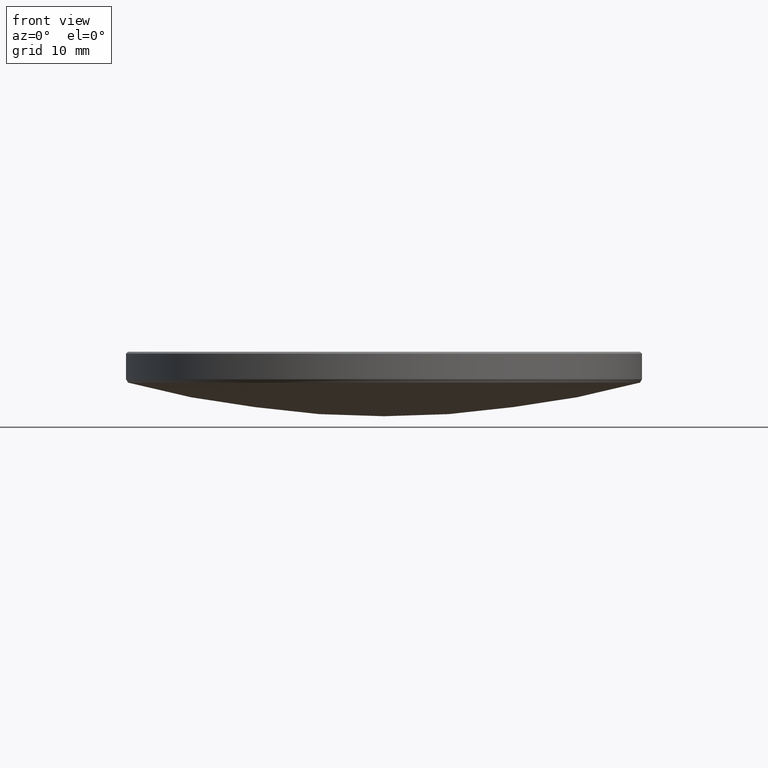
[diagram: clean part render]
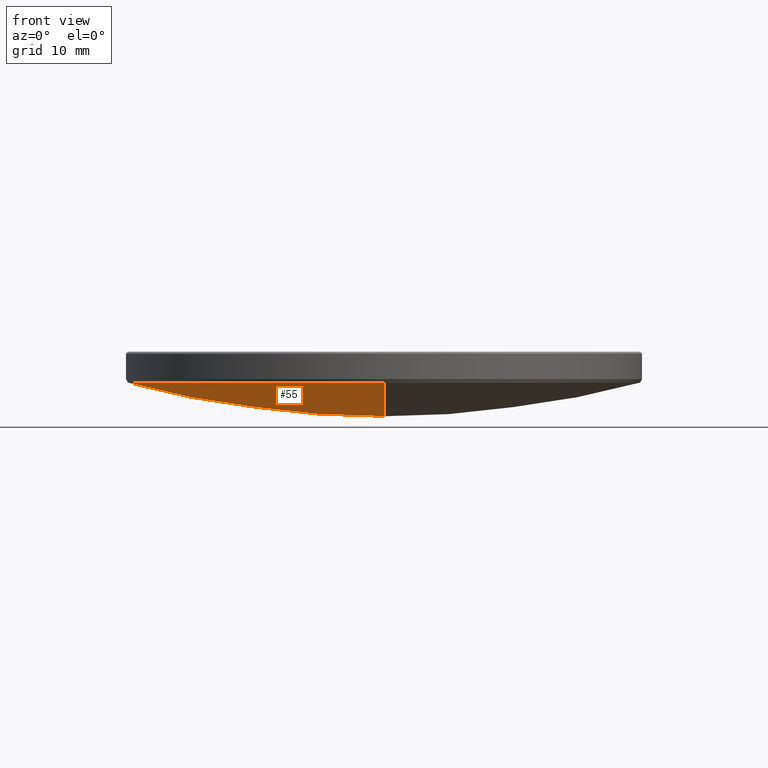
[diagram: same view with one face highlighted and labeled with its STEP entity id]
A machine part, front view. The second image highlights one B-rep face of the part: STEP entity #55.
In plain terms, the highlighted spherical surface has radius 97.61 mm.
Its self-contained STEP definition (entity closure, byte-faithful):
#4 = DIRECTION ( 'NONE',  ( 1.000000000000000000, 0.000000000000000000, 0.000000000000000000 ) ) ;
#15 = VERTEX_POINT ( 'NONE', #197 ) ;
#20 = CARTESIAN_POINT ( 'NONE',  ( 0.000000000000000000, 0.000000000000000000, 108.2472922687967838 ) ) ;
#26 = CARTESIAN_POINT ( 'NONE',  ( -25.20703431346279899, 3.098787129316124781E-15, 13.94820679539513009 ) ) ;
#39 = VERTEX_POINT ( 'NONE', #122 ) ;
#41 = CARTESIAN_POINT ( 'NONE',  ( 0.000000000000000000, 0.000000000000000000, 108.2472922687967838 ) ) ;
#49 = AXIS2_PLACEMENT_3D ( 'NONE', #95, #144, #330 ) ;
#55 = ADVANCED_FACE ( 'NONE', ( #198 ), #94, .T. ) ;
#71 = EDGE_CURVE ( 'NONE', #143, #15, #157, .T. ) ;
#94 = SPHERICAL_SURFACE ( 'NONE', #110, 97.61000000000001364 ) ;
#95 = CARTESIAN_POINT ( 'NONE',  ( 0.000000000000000000, 0.000000000000000000, 108.2472922687967838 ) ) ;
#101 = DIRECTION ( 'NONE',  ( 0.000000000000000000, 0.000000000000000000, -1.000000000000000000 ) ) ;
#109 = ORIENTED_EDGE ( 'NONE', *, *, #279, .T. ) ;
#110 = AXIS2_PLACEMENT_3D ( 'NONE', #41, #271, #244 ) ;
#117 = DIRECTION ( 'NONE',  ( -1.000000000000000000, 1.224646799147353207E-16, 0.000000000000000000 ) ) ;
#122 = CARTESIAN_POINT ( 'NONE',  ( 0.000000000000000000, 25.20703431346280965, 13.94820679539513009 ) ) ;
#141 = ORIENTED_EDGE ( 'NONE', *, *, #320, .T. ) ;
#143 = VERTEX_POINT ( 'NONE', #155 ) ;
#144 = DIRECTION ( 'NONE',  ( 1.000000000000000000, -0.000000000000000000, 0.000000000000000000 ) ) ;
#155 = CARTESIAN_POINT ( 'NONE',  ( 0.000000000000000000, 5.976888703238658404E-15, 10.63729226879676837 ) ) ;
#156 = CARTESIAN_POINT ( 'NONE',  ( 0.000000000000000000, 0.000000000000000000, 13.94820679539513009 ) ) ;
#157 = CIRCLE ( 'NONE', #240, 97.61000000000001364 ) ;
#163 = EDGE_LOOP ( 'NONE', ( #188, #322, #141, #109 ) ) ;
#168 = VERTEX_POINT ( 'NONE', #26 ) ;
#188 = ORIENTED_EDGE ( 'NONE', *, *, #223, .F. ) ;
#196 = CIRCLE ( 'NONE', #231, 25.20703431346279544 ) ;
#197 = CARTESIAN_POINT ( 'NONE',  ( -3.086971388797973485E-15, -25.20703431346280965, 13.94820679539513009 ) ) ;
#198 = FACE_OUTER_BOUND ( 'NONE', #163, .T. ) ;
#199 = DIRECTION ( 'NONE',  ( 0.000000000000000000, 0.000000000000000000, -1.000000000000000000 ) ) ;
#223 = EDGE_CURVE ( 'NONE', #143, #39, #310, .T. ) ;
#231 = AXIS2_PLACEMENT_3D ( 'NONE', #290, #101, #4 ) ;
#240 = AXIS2_PLACEMENT_3D ( 'NONE', #20, #117, #274 ) ;
#244 = DIRECTION ( 'NONE',  ( 0.000000000000000000, 1.000000000000000000, 0.000000000000000000 ) ) ;
#271 = DIRECTION ( 'NONE',  ( -1.000000000000000000, 0.000000000000000000, 0.000000000000000000 ) ) ;
#274 = DIRECTION ( 'NONE',  ( -1.224646799147353207E-16, -1.000000000000000000, 0.000000000000000000 ) ) ;
#279 = EDGE_CURVE ( 'NONE', #168, #39, #196, .T. ) ;
#280 = CIRCLE ( 'NONE', #293, 25.20703431346279544 ) ;
#287 = DIRECTION ( 'NONE',  ( 1.000000000000000000, 0.000000000000000000, 0.000000000000000000 ) ) ;
#290 = CARTESIAN_POINT ( 'NONE',  ( 0.000000000000000000, 0.000000000000000000, 13.94820679539513009 ) ) ;
#293 = AXIS2_PLACEMENT_3D ( 'NONE', #156, #199, #287 ) ;
#310 = CIRCLE ( 'NONE', #49, 97.61000000000001364 ) ;
#320 = EDGE_CURVE ( 'NONE', #15, #168, #280, .T. ) ;
#322 = ORIENTED_EDGE ( 'NONE', *, *, #71, .T. ) ;
#330 = DIRECTION ( 'NONE',  ( 0.000000000000000000, 0.000000000000000000, -1.000000000000000000 ) ) ;